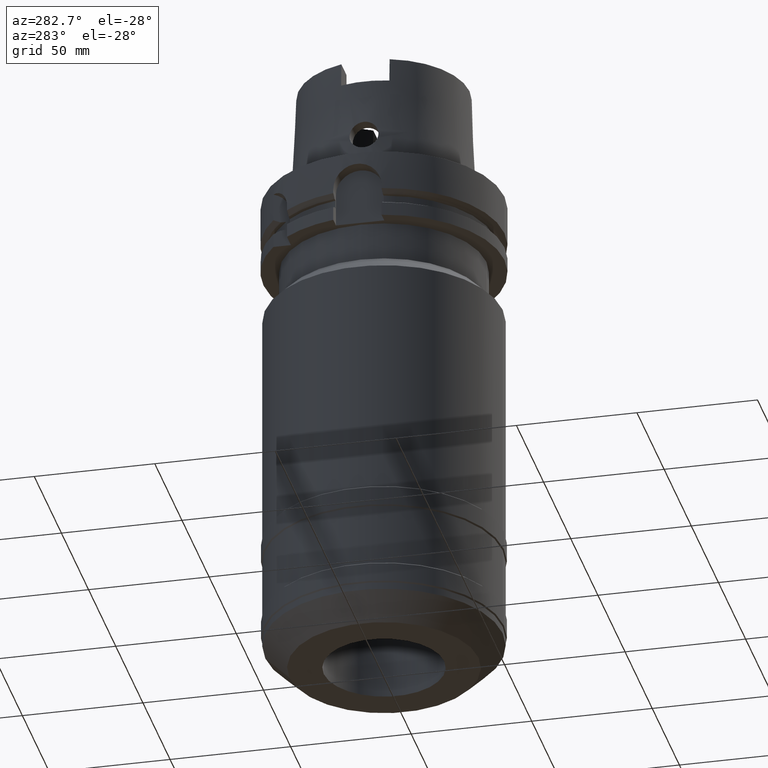
[diagram: clean part render]
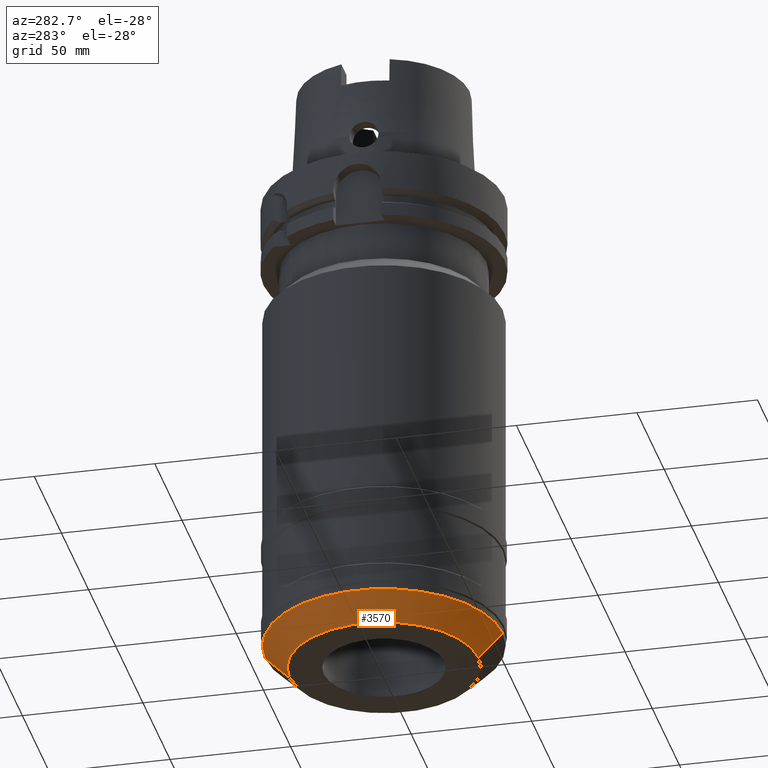
[diagram: same view with one face highlighted and labeled with its STEP entity id]
A machine part, auxiliary view. The second image highlights one B-rep face of the part: STEP entity #3570.
In plain terms, the highlighted conical surface has half-angle 45 deg.
Its self-contained STEP definition (entity closure, byte-faithful):
#1590=DIRECTION('',(0.E0,-7.071067811865E-1,-7.071067811865E-1));
#1591=VECTOR('',#1590,1.414213562373E1);
#1592=CARTESIAN_POINT('',(0.E0,4.925E1,-2.E2));
#1593=LINE('',#1592,#1591);
#1605=CARTESIAN_POINT('',(0.E0,0.E0,-2.E2));
#1606=DIRECTION('',(0.E0,0.E0,1.E0));
#1607=DIRECTION('',(0.E0,1.E0,0.E0));
#1608=AXIS2_PLACEMENT_3D('',#1605,#1606,#1607);
#1613=DIRECTION('',(0.E0,7.071067811865E-1,-7.071067811865E-1));
#1614=VECTOR('',#1613,1.414213562373E1);
#1615=CARTESIAN_POINT('',(0.E0,-4.925E1,-2.E2));
#1616=LINE('',#1615,#1614);
#1628=CARTESIAN_POINT('',(0.E0,0.E0,-2.1E2));
#1629=DIRECTION('',(0.E0,0.E0,1.E0));
#1630=DIRECTION('',(0.E0,1.E0,0.E0));
#1631=AXIS2_PLACEMENT_3D('',#1628,#1629,#1630);
#2250=CARTESIAN_POINT('',(0.E0,4.925E1,-2.E2));
#2251=VERTEX_POINT('',#2250);
#2252=CARTESIAN_POINT('',(0.E0,-4.925E1,-2.E2));
#2253=VERTEX_POINT('',#2252);
#2254=CARTESIAN_POINT('',(0.E0,3.925E1,-2.1E2));
#2255=VERTEX_POINT('',#2254);
#2256=CARTESIAN_POINT('',(0.E0,-3.925E1,-2.1E2));
#2257=VERTEX_POINT('',#2256);
#3558=CARTESIAN_POINT('',(0.E0,0.E0,-2.05E2));
#3559=DIRECTION('',(0.E0,0.E0,1.E0));
#3560=DIRECTION('',(0.E0,1.E0,0.E0));
#3561=AXIS2_PLACEMENT_3D('',#3558,#3559,#3560);
#3562=CONICAL_SURFACE('',#3561,4.425E1,4.5E1);
#3563=ORIENTED_EDGE('',*,*,#3548,.F.);
#3564=ORIENTED_EDGE('',*,*,#3525,.T.);
#3565=ORIENTED_EDGE('',*,*,#3552,.T.);
#3567=ORIENTED_EDGE('',*,*,#3566,.F.);
#3568=EDGE_LOOP('',(#3563,#3564,#3565,#3567));
#3569=FACE_OUTER_BOUND('',#3568,.F.);
#1609=CIRCLE('',#1608,4.925E1);
#1632=CIRCLE('',#1631,3.925E1);
#3525=EDGE_CURVE('',#2251,#2253,#1609,.T.);
#3548=EDGE_CURVE('',#2251,#2255,#1593,.T.);
#3552=EDGE_CURVE('',#2253,#2257,#1616,.T.);
#3566=EDGE_CURVE('',#2255,#2257,#1632,.T.);
#3570=ADVANCED_FACE('',(#3569),#3562,.T.);